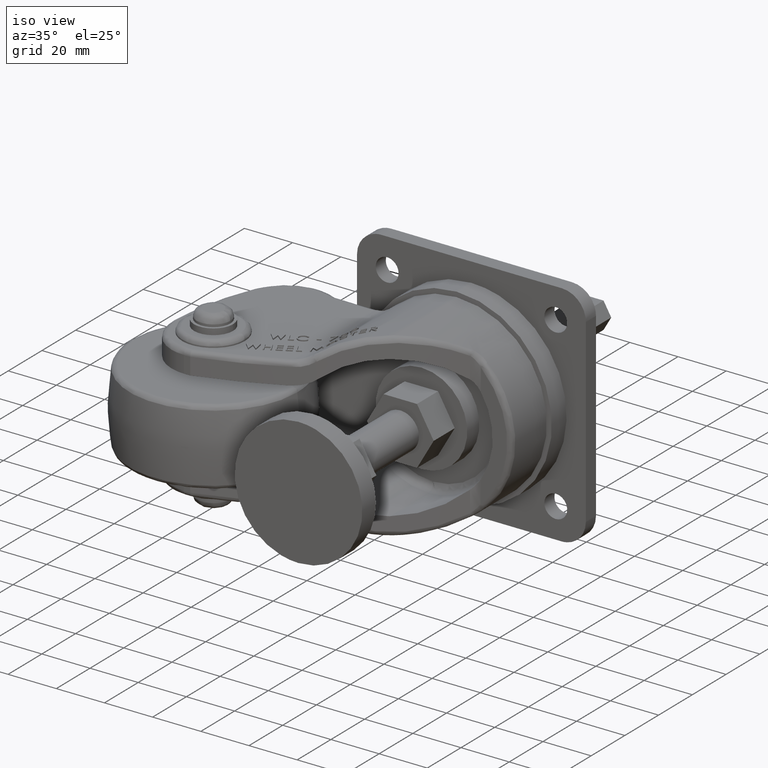
[diagram: clean part render]
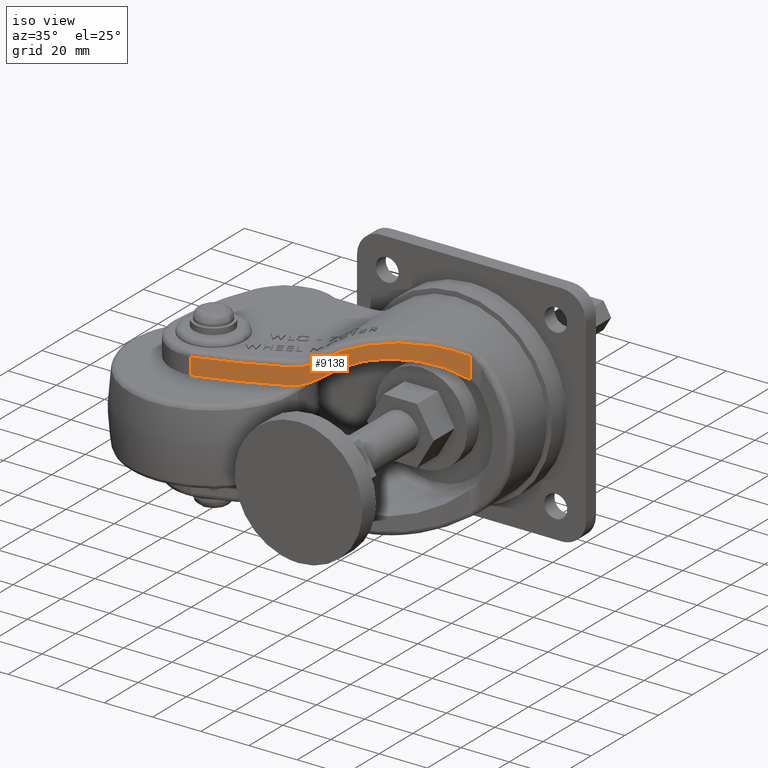
[diagram: same view with one face highlighted and labeled with its STEP entity id]
A machine part, iso view. The second image highlights one B-rep face of the part: STEP entity #9138.
In plain terms, the highlighted face is a freeform B-spline surface patch.
Its self-contained STEP definition (entity closure, byte-faithful):
#68 = CARTESIAN_POINT ( 'NONE',  ( -24.65525064200000216, 24.95008783900000182, 26.04087533799999932 ) ) ;
#125 = VERTEX_POINT ( 'NONE', #1433 ) ;
#183 = CARTESIAN_POINT ( 'NONE',  ( -29.29163702940070024, 22.57965172464994907, 18.50000000000000000 ) ) ;
#239 = CARTESIAN_POINT ( 'NONE',  ( 6.005326444736247105, 44.91803432513322036, 28.88236210724056008 ) ) ;
#382 = CARTESIAN_POINT ( 'NONE',  ( -23.70795384799999894, 25.45199231399999817, 26.35767637500000049 ) ) ;
#616 = EDGE_CURVE ( 'NONE', #22958, #2875, #14221, .T. ) ;
#682 = CARTESIAN_POINT ( 'NONE',  ( -21.82102644957911153, 26.47539168963408684, 20.49219686929322748 ) ) ;
#696 = CARTESIAN_POINT ( 'NONE',  ( -28.25720241518495257, 23.09539682960305029, 25.49999999859155153 ) ) ;
#707 = CARTESIAN_POINT ( 'NONE',  ( 3.147898175283170730, 42.70119839392936711, 29.33166164872362103 ) ) ;
#794 = CARTESIAN_POINT ( 'NONE',  ( -4.328797794036280955, 37.27608995097781985, 29.18190549948791457 ) ) ;
#1104 = CARTESIAN_POINT ( 'NONE',  ( -1.831874267391225128E-08, 40.35278656966605126, 29.50000000293384872 ) ) ;
#1305 = CARTESIAN_POINT ( 'NONE',  ( -24.79318277593846176, 24.87716303363304959, 19.18730859359163432 ) ) ;
#1417 = CARTESIAN_POINT ( 'NONE',  ( -9.660581609450730411, 33.71750080163042895, 27.87368702396885922 ) ) ;
#1433 = CARTESIAN_POINT ( 'NONE',  ( -19.41805150281274805, 27.81522370650059628, 22.20786517015875106 ) ) ;
#1457 = CARTESIAN_POINT ( 'NONE',  ( -9.297678018999999239, 33.95180065099999922, 33.94795673000000136 ) ) ;
#1575 = CARTESIAN_POINT ( 'NONE',  ( -12.92898527580160817, 31.65475252276948126, 26.51969384087986015 ) ) ;
#1618 = CARTESIAN_POINT ( 'NONE',  ( -13.88591949999999997, 31.06479848700000090, 32.22396060799999873 ) ) ;
#1665 = VERTEX_POINT ( 'NONE', #31499 ) ;
#1780 = CARTESIAN_POINT ( 'NONE',  ( -6.504552054000000361, 35.79047115299999859, 34.68561126700000585 ) ) ;
#1841 = CARTESIAN_POINT ( 'NONE',  ( -20.81739126164644915, 27.02974513697879644, 28.02631579095815084 ) ) ;
#1844 = CARTESIAN_POINT ( 'NONE',  ( 16.49288190722238667, 53.80984148448008852, 24.45884119618754582 ) ) ;
#2007 = CARTESIAN_POINT ( 'NONE',  ( 12.59375097225423268, 50.35775283984629169, 26.67782140446650629 ) ) ;
#2052 = CARTESIAN_POINT ( 'NONE',  ( -9.992750380294008750, 33.50393165147110608, 27.75599293777649024 ) ) ;
#2095 = CARTESIAN_POINT ( 'NONE',  ( 17.23454929500000077, 54.48327271400000171, 31.76120717699999929 ) ) ;
#2177 = ORIENTED_EDGE ( 'NONE', *, *, #9538, .F. ) ;
#2319 = CARTESIAN_POINT ( 'NONE',  ( 10.72168847714268658, 48.76376229902970039, 27.48290623144142586 ) ) ;
#2459 = CARTESIAN_POINT ( 'NONE',  ( -25.94563935500000085, 24.27470134099999655, 25.71566576200000043 ) ) ;
#2472 = CARTESIAN_POINT ( 'NONE',  ( 14.04003070979628909, 51.61740633020574620, 25.94471071671260276 ) ) ;
#2633 = CARTESIAN_POINT ( 'NONE',  ( 10.04811362204656611, 48.19986837793505430, 27.73599696671326242 ) ) ;
#2789 = CARTESIAN_POINT ( 'NONE',  ( -49.98558823086649738, 13.37178198489389302, 25.50000000111739595 ) ) ;
#2875 = VERTEX_POINT ( 'NONE', #1841 ) ;
#3102 = CARTESIAN_POINT ( 'NONE',  ( 6.186694439817431501, 45.06149836843870560, 28.84431884347645081 ) ) ;
#3255 = CARTESIAN_POINT ( 'NONE',  ( 8.636160785993384437, 47.03377977456575110, 28.20756539750720293 ) ) ;
#3647 = CARTESIAN_POINT ( 'NONE',  ( -9.010992513977289065, 34.13790754392066162, 28.09086996842518857 ) ) ;
#3762 = B_SPLINE_CURVE_WITH_KNOTS ( 'NONE', 3,
 ( #1104, #27421, #12900, #10351, #30129, #17825, #794, #20060, #25495, #10511, #27583, #8284, #13218, #17983, #10829, #27741, #15591, #3647, #21319, #1417, #19079, #3962, #20839, #18764, #2052, #23884, #25645, #1575, #30603, #11771, #3807, #28530, #14155, #21481, #23724, #16050, #23569, #31240, #9383 ),
 .UNSPECIFIED., .F., .F.,
 ( 4, 2, 2, 1, 1, 1, 1, 2, 2, 2, 2, 1, 1, 1, 1, 2, 2, 2, 2, 1, 1, 1, 2, 2, 4 ),
 ( -1.000000000000000000, -0.8749999999999885647, -0.8124999999999827915, -0.7812499999999797939, -0.7656249999999784617, -0.7578124999999777955, -0.7539062499999772404, -0.7519531249999769074, -0.7499999999999766853, -0.6249999999999695799, -0.5624999999999661382, -0.5312499999999644729, -0.5156249999999633626, -0.5078124999999631406, -0.5039062499999629186, -0.5019531249999629186, -0.4999999999999631406, -0.3749999999999668043, -0.3124999999999688027, -0.2812499999999695799, -0.2656249999999699130, -0.2578124999999702460, -0.2539062499999704681, -0.2499999999999706901, 0.000000000000000000 ),
 .UNSPECIFIED. ) ;
#3807 = CARTESIAN_POINT ( 'NONE',  ( -14.21861831760395489, 30.86543888044226236, 25.84893762632682979 ) ) ;
#3846 = CARTESIAN_POINT ( 'NONE',  ( -17.42208175599999720, 28.95853807799999657, 30.35926800400000047 ) ) ;
#3937 = ORIENTED_EDGE ( 'NONE', *, *, #6998, .T. ) ;
#3962 = CARTESIAN_POINT ( 'NONE',  ( -9.920021733781062778, 33.55062452058552935, 27.78208716354417618 ) ) ;
#4004 = CARTESIAN_POINT ( 'NONE',  ( -7.900102936999998882, 34.86447989299999506, 34.34316464299999438 ) ) ;
#4124 = VERTEX_POINT ( 'NONE', #22629 ) ;
#4227 = CARTESIAN_POINT ( 'NONE',  ( 16.57370507339000554, 53.88332028526473749, 24.40418297020112703 ) ) ;
#4322 = CARTESIAN_POINT ( 'NONE',  ( 4.532390217999999749, 43.76088580100000058, 35.35703854600000540 ) ) ;
#4386 = CARTESIAN_POINT ( 'NONE',  ( 18.86278132547390030, 55.99861052402359718, 22.68139211924491860 ) ) ;
#4482 = CARTESIAN_POINT ( 'NONE',  ( 16.03536053200000211, 53.39438099999999565, 32.31875172000000163 ) ) ;
#4553 = CARTESIAN_POINT ( 'NONE',  ( 11.36943016690035790, 49.31101911016275352, 27.22105917634605987 ) ) ;
#4700 = CARTESIAN_POINT ( 'NONE',  ( -28.25720241518495257, 23.09539682960305029, 25.49999999859155153 ) ) ;
#4709 = CARTESIAN_POINT ( 'NONE',  ( 11.23697421795095330, 49.19865796626365295, 27.27635878179787809 ) ) ;
#4797 = CARTESIAN_POINT ( 'NONE',  ( 20.31806101599999792, 57.37466864399999622, 30.04172522300000381 ) ) ;
#4868 = CARTESIAN_POINT ( 'NONE',  ( 12.00270129771463701, 49.85036998892281446, 26.94814717928630898 ) ) ;
#5181 = CARTESIAN_POINT ( 'NONE',  ( 9.114728368103534706, 47.42653239891802741, 28.05684102624109144 ) ) ;
#5214 = EDGE_CURVE ( 'NONE', #11067, #24131, #22546, .T. ) ;
#5340 = CARTESIAN_POINT ( 'NONE',  ( 8.669309623246197916, 47.06090736611220393, 28.19739867931088995 ) ) ;
#5472 = VERTEX_POINT ( 'NONE', #27231 ) ;
#5492 = CARTESIAN_POINT ( 'NONE',  ( 5.852797744966482085, 44.79761386736959849, 28.91357466358102002 ) ) ;
#5624 = CARTESIAN_POINT ( 'NONE',  ( -25.53882641191660596, 24.48547402537996120, 18.96496729356536903 ) ) ;
#5777 = CARTESIAN_POINT ( 'NONE',  ( -23.01326120483669158, 25.82560219772000920, 19.86401847949832700 ) ) ;
#6095 = CARTESIAN_POINT ( 'NONE',  ( -22.01688754681403637, 26.36808936462375641, 20.38162230928390528 ) ) ;
#6250 = CARTESIAN_POINT ( 'NONE',  ( 18.01957705199999893, 55.20790860900000041, 31.36058891400000093 ) ) ;
#6372 = B_SPLINE_CURVE_WITH_KNOTS ( 'NONE', 3,
 ( #12036, #26228, #6783, #14272, #16314, #14430, #7271, #19347, #31506, #4386, #28480, #6945, #19186, #12192, #28956, #26069, #16473, #29117, #21592, #4227, #31032, #28795, #1844, #21268, #24161, #9333, #16959, #30869, #18871, #24316, #14108, #26713, #2472, #13951, #16629, #9015, #31192, #23838, #26390, #2007, #7109, #4868, #18717, #11726, #21433, #19028, #9490, #16800, #14583, #4553, #24001, #4709, #26549, #2319, #22229, #19510, #7424, #10126, #15199, #2633, #27187, #10268, #12818, #12350, #5181, #17118, #7896, #15352, #25099, #5340, #27502, #14735, #19828, #3255, #24951, #7585, #22068, #12664, #15050, #3102, #239, #29270, #29891, #5492, #14895, #29579, #22542, #17431, #9972, #21908, #17271, #19976, #707, #17585, #19668, #24792, #7741, #27338, #27026, #10425, #29429 ),
 .UNSPECIFIED., .F., .F.,
 ( 4, 2, 1, 1, 1, 1, 1, 2, 2, 2, 2, 1, 1, 1, 1, 2, 2, 2, 2, 1, 1, 1, 1, 1, 2, 2, 2, 2, 1, 1, 1, 1, 1, 1, 2, 2, 2, 2, 1, 1, 1, 2, 2, 2, 2, 1, 1, 1, 1, 2, 2, 2, 2, 1, 1, 1, 1, 2, 2, 2, 2, 1, 1, 1, 1, 2, 2, 4 ),
 ( -1.000000000000000000, -0.9375000000000005551, -0.9062500000000006661, -0.8906250000000005551, -0.8828125000000002220, -0.8789062500000001110, -0.8769531249999998890, -0.8759765624999995559, -0.8749999999999992228, -0.8124999999999930056, -0.7812499999999902300, -0.7656249999999891198, -0.7578124999999887867, -0.7539062499999885647, -0.7519531249999883427, -0.7509765624999880096, -0.7499999999999877875, -0.6874999999999680256, -0.6562499999999580336, -0.6406249999999529265, -0.6328124999999501510, -0.6289062499999487077, -0.6269531249999480416, -0.6259765624999479305, -0.6254882812499478195, -0.6249999999999478195, -0.5624999999998812061, -0.5312499999998478994, -0.5156249999998312461, -0.5078124999998231415, -0.5039062499998188116, -0.5019531249998170352, -0.5009765624998161471, -0.5004882812498157030, -0.5002441406248157030, -0.4999999999998155920, -0.4687499999998389066, -0.4531249999998502309, -0.4453124999998560041, -0.4414062499998587796, -0.4394531249998602229, -0.4384765624998612221, -0.4374999999998621103, -0.4062499999998973044, -0.3906249999999149569, -0.3828124999999238387, -0.3789062499999280575, -0.3769531249999297229, -0.3759765624999302780, -0.3754882812499301670, -0.3749999999999300559, -0.3124999999999348299, -0.2812499999999369393, -0.2656249999999379385, -0.2578124999999384936, -0.2539062499999383826, -0.2519531249999381606, -0.2509765624999380496, -0.2499999999999380496, -0.1874999999999537037, -0.1562499999999615863, -0.1406249999999653610, -0.1328124999999669154, -0.1289062499999679146, -0.1269531249999688027, -0.1259765624999691358, -0.1249999999999694689, 0.000000000000000000 ),
 .UNSPECIFIED. ) ;
#6560 = CARTESIAN_POINT ( 'NONE',  ( 1.804710767999999854, 41.68635409799999536, 35.49771358699999979 ) ) ;
#6717 = CARTESIAN_POINT ( 'NONE',  ( -9.996277859000000987, 33.50144369299999880, 33.72863773500000661 ) ) ;
#6783 = CARTESIAN_POINT ( 'NONE',  ( 20.37159607446913867, 57.42870154500422331, 21.34248958564863230 ) ) ;
#6880 = CARTESIAN_POINT ( 'NONE',  ( -2.797146813999999981, 38.34124148099999729, 35.29155204799999979 ) ) ;
#6945 = CARTESIAN_POINT ( 'NONE',  ( 18.84298061046847650, 55.98002769283339575, 22.69784424937930822 ) ) ;
#6998 = EDGE_CURVE ( 'NONE', #11067, #125, #20152, .T. ) ;
#7082 = ORIENTED_EDGE ( 'NONE', *, *, #11658, .F. ) ;
#7109 = CARTESIAN_POINT ( 'NONE',  ( 12.36424295917356808, 50.16012037522316547, 26.78517118483800630 ) ) ;
#7271 = CARTESIAN_POINT ( 'NONE',  ( 19.01400222479344393, 56.14066703448978757, 22.55493836956359033 ) ) ;
#7424 = CARTESIAN_POINT ( 'NONE',  ( 10.28176090441821877, 48.39487312140128239, 27.65043856210708384 ) ) ;
#7573 = CARTESIAN_POINT ( 'NONE',  ( -24.49616874800000232, 25.03414888899999724, 26.09108597200000190 ) ) ;
#7585 = CARTESIAN_POINT ( 'NONE',  ( 7.601346735300016810, 46.19178861947275294, 28.50793170389851028 ) ) ;
#7741 = CARTESIAN_POINT ( 'NONE',  ( 2.965103641163039594, 42.56220333792965249, 29.35060834055168399 ) ) ;
#7896 = CARTESIAN_POINT ( 'NONE',  ( 8.858079368969224987, 47.21561497744507108, 28.13871282089294112 ) ) ;
#8284 = CARTESIAN_POINT ( 'NONE',  ( -5.001681248799894064, 36.81350866519529319, 29.07289703980629625 ) ) ;
#8286 = CARTESIAN_POINT ( 'NONE',  ( -55.88824249945583489, 11.63013319433333415, 18.50000000000000355 ) ) ;
#8414 = CARTESIAN_POINT ( 'NONE',  ( 21.06072384431655209, 58.09326814931600325, 29.55235347159264592 ) ) ;
#8487 = CARTESIAN_POINT ( 'NONE',  ( -22.31232840121258221, 26.20655226009631633, 20.21917359542420911 ) ) ;
#8644 = CARTESIAN_POINT ( 'NONE',  ( -19.41805150281274805, 27.81522370650059628, 22.20786517015875106 ) ) ;
#8916 = EDGE_CURVE ( 'NONE', #4124, #18769, #6372, .T. ) ;
#9015 = CARTESIAN_POINT ( 'NONE',  ( 13.99642919470550950, 51.57908803198851189, 25.96824959207322081 ) ) ;
#9138 = ADVANCED_FACE ( 'NONE', ( #19578 ), #14760, .F. ) ;
#9266 = CARTESIAN_POINT ( 'NONE',  ( 14.40720262500000004, 51.94075244100000077, 33.00201421599999918 ) ) ;
#9333 = CARTESIAN_POINT ( 'NONE',  ( 15.72422461030047813, 53.11385203790587184, 24.96465620843931887 ) ) ;
#9383 = CARTESIAN_POINT ( 'NONE',  ( -19.41805150281274805, 27.81522370650059628, 22.20786517015875106 ) ) ;
#9490 = CARTESIAN_POINT ( 'NONE',  ( 11.39417234628355580, 49.33201145188529324, 27.21071436302226942 ) ) ;
#9538 = EDGE_CURVE ( 'NONE', #5472, #4124, #16541, .T. ) ;
#9644 = CARTESIAN_POINT ( 'NONE',  ( -23.09925898199999850, 25.77898936800000129, 26.62062910500000257 ) ) ;
#9972 = CARTESIAN_POINT ( 'NONE',  ( 4.102912211095927297, 43.43270527319192809, 29.21429315380184377 ) ) ;
#10109 = CARTESIAN_POINT ( 'NONE',  ( -24.97594894099999863, 24.78118808400000006, 25.94686006899999953 ) ) ;
#10126 = CARTESIAN_POINT ( 'NONE',  ( 10.14745856113552414, 48.28271964987411025, 27.69985818714985371 ) ) ;
#10268 = CARTESIAN_POINT ( 'NONE',  ( 10.01663894245275266, 48.17363696822155106, 27.74737891015878688 ) ) ;
#10351 = CARTESIAN_POINT ( 'NONE',  ( -3.000028689052291586, 38.20172566576978568, 29.35007670271309976 ) ) ;
#10425 = CARTESIAN_POINT ( 'NONE',  ( 0.9408226926666517498, 41.04039670688698038, 29.50000000000000000 ) ) ;
#10511 = CARTESIAN_POINT ( 'NONE',  ( -4.939797601283868467, 36.85590468470669379, 29.08349195516040808 ) ) ;
#10674 = CARTESIAN_POINT ( 'NONE',  ( -34.45404570252879495, 20.02439374316666942, 18.50000000000000000 ) ) ;
#10719 = CARTESIAN_POINT ( 'NONE',  ( -24.26616967508909894, 25.15605338284932913, 19.36644487758410449 ) ) ;
#10829 = CARTESIAN_POINT ( 'NONE',  ( -6.747539501604654433, 35.62840669552269901, 28.73081353040964814 ) ) ;
#10874 = CARTESIAN_POINT ( 'NONE',  ( -29.29163702940070024, 22.57965172464994907, 18.50000000000000000 ) ) ;
#11067 = VERTEX_POINT ( 'NONE', #183 ) ;
#11179 = EDGE_LOOP ( 'NONE', ( #25428, #28651, #7082, #15404, #17414, #3937, #15876, #23066, #2177 ) ) ;
#11181 = CARTESIAN_POINT ( 'NONE',  ( 3.175259866000000208, 42.72104010200000346, 35.44850700099999585 ) ) ;
#11297 = CARTESIAN_POINT ( 'NONE',  ( -50.44411264046427590, 13.49546060983333007, 18.49999999999999289 ) ) ;
#11336 = CARTESIAN_POINT ( 'NONE',  ( -5.575776063000000171, 36.41796473800000200, 34.87438786999999252 ) ) ;
#11658 = EDGE_CURVE ( 'NONE', #1665, #22958, #20052, .T. ) ;
#11661 = CARTESIAN_POINT ( 'NONE',  ( 12.33678096900000121, 50.13291979099999907, 33.75318501099999935 ) ) ;
#11726 = CARTESIAN_POINT ( 'NONE',  ( 11.59402217306620742, 49.50178249959348165, 27.12632127364173584 ) ) ;
#11771 = CARTESIAN_POINT ( 'NONE',  ( -13.92425054759359782, 31.04462923608245006, 26.00798311294189702 ) ) ;
#12036 = CARTESIAN_POINT ( 'NONE',  ( 21.06072378222939889, 58.09326808770810402, 20.65661910857134842 ) ) ;
#12192 = CARTESIAN_POINT ( 'NONE',  ( 18.10953148086146669, 55.29420428226586637, 23.29240458382044920 ) ) ;
#12350 = CARTESIAN_POINT ( 'NONE',  ( 9.459040705065863364, 47.71046395001397400, 27.94342418752957258 ) ) ;
#12417 = CARTESIAN_POINT ( 'NONE',  ( -30.29031434679844992, 19.18310828544459667, 18.50000000000000000 ) ) ;
#12494 = CARTESIAN_POINT ( 'NONE',  ( -26.92589148700000123, 23.76868129800000062, 25.55458331000000172 ) ) ;
#12664 = CARTESIAN_POINT ( 'NONE',  ( 6.673373040092223540, 45.44822554602119169, 28.73614205078697736 ) ) ;
#12733 = CARTESIAN_POINT ( 'NONE',  ( -61.41295710420827447, 10.00000002744858030, 35.61210496575490225 ) ) ;
#12818 = CARTESIAN_POINT ( 'NONE',  ( 9.718742778832190510, 47.92544385518490202, 27.85480813578974590 ) ) ;
#12900 = CARTESIAN_POINT ( 'NONE',  ( -1.742106642121690863, 39.09077819993684955, 29.46054586745792747 ) ) ;
#13218 = CARTESIAN_POINT ( 'NONE',  ( -5.012821761466185855, 36.80587919103301431, 29.07097879551267994 ) ) ;
#13264 = CARTESIAN_POINT ( 'NONE',  ( -26.18983346238251286, 24.14798271252399076, 18.81742188985691655 ) ) ;
#13564 = CARTESIAN_POINT ( 'NONE',  ( -19.14032721999999964, 27.97005243699999966, 29.25913863400000281 ) ) ;
#13687 = CARTESIAN_POINT ( 'NONE',  ( -61.41295716586250109, 10.00000000914952025, 18.50000000000000000 ) ) ;
#13884 = CARTESIAN_POINT ( 'NONE',  ( -20.81739126164644915, 27.02974513697879644, 28.02631579095815084 ) ) ;
#13951 = CARTESIAN_POINT ( 'NONE',  ( 14.01461236150864309, 51.59506567348856265, 25.95844293814723613 ) ) ;
#14108 = CARTESIAN_POINT ( 'NONE',  ( 14.19160113784234234, 51.75075748340448456, 25.86224990805145652 ) ) ;
#14155 = CARTESIAN_POINT ( 'NONE',  ( -14.72641699265791715, 30.55840037223621053, 25.56145596539863618 ) ) ;
#14221 = B_SPLINE_CURVE_WITH_KNOTS ( 'NONE', 3,
 ( #4700, #24620, #12494, #2459, #22218, #14417, #10109, #68, #7573, #382, #9644, #26698, #19814, #24146 ),
 .UNSPECIFIED., .F., .F.,
 ( 4, 2, 2, 2, 2, 2, 4 ),
 ( 0.000000000000000000, 0.2500000000000004996, 0.3750000000000002220, 0.4375000000000000555, 0.5000000000000000000, 0.7500000000000005551, 1.000000000000000000 ),
 .UNSPECIFIED. ) ;
#14272 = CARTESIAN_POINT ( 'NONE',  ( 19.81614534600603861, 56.89909148023444629, 21.85483540797493163 ) ) ;
#14417 = CARTESIAN_POINT ( 'NONE',  ( -25.13680720600000029, 24.69674848099999664, 25.90327480200000210 ) ) ;
#14430 = CARTESIAN_POINT ( 'NONE',  ( 19.18859333122815869, 56.30499027545424440, 22.40708982673599792 ) ) ;
#14583 = CARTESIAN_POINT ( 'NONE',  ( 11.37355757994733452, 49.31452063022665300, 27.21933491064357824 ) ) ;
#14672 = CARTESIAN_POINT ( 'NONE',  ( 19.56133197400000512, 56.65360469099999818, 30.50084512300000128 ) ) ;
#14735 = CARTESIAN_POINT ( 'NONE',  ( 8.642589539402218080, 47.03904007870733039, 28.20559614202984733 ) ) ;
#14760 =( BOUNDED_SURFACE ( )  B_SPLINE_SURFACE ( 1, 3, ( 
 ( #14809, #12417, #15113, #20049 ),
 ( #12733, #15268, #22456, #19897 ) ),
 .UNSPECIFIED., .F., .F., .F. ) 
 B_SPLINE_SURFACE_WITH_KNOTS ( ( 2, 2 ),
 ( 4, 4 ),
 ( 0.000000000000000000, 0.9950426374370000548 ),
 ( 0.000000000000000000, 1.000000000000000000 ),
 .UNSPECIFIED. ) 
 GEOMETRIC_REPRESENTATION_ITEM ( )  RATIONAL_B_SPLINE_SURFACE ( (
 ( 1.000000000000000000, 0.9807322519508824277, 0.9807322519508824277, 1.000000000000000000),
 ( 1.000000000000000000, 0.9807322519508824277, 0.9807322519508824277, 1.000000000000000000) ) ) 
 REPRESENTATION_ITEM ( '' )  SURFACE ( )  );
#14809 = CARTESIAN_POINT ( 'NONE',  ( -61.41295710420827447, 10.00000002744858030, 18.50000000000000000 ) ) ;
#14895 = CARTESIAN_POINT ( 'NONE',  ( 5.840204260639789702, 44.78768056393278130, 28.91612103073237350 ) ) ;
#15050 = CARTESIAN_POINT ( 'NONE',  ( 6.346853885445490562, 45.18857977248886471, 28.80937152526266587 ) ) ;
#15113 = CARTESIAN_POINT ( 'NONE',  ( -2.258986841167445636, 35.52914902182733670, 18.50000000000000000 ) ) ;
#15199 = CARTESIAN_POINT ( 'NONE',  ( 10.07822942744193284, 48.22497408402901442, 27.72508041933468093 ) ) ;
#15268 = CARTESIAN_POINT ( 'NONE',  ( -30.29031434679844992, 19.18310828544459667, 35.61210496575491646 ) ) ;
#15352 = CARTESIAN_POINT ( 'NONE',  ( 8.786233044017157212, 47.15667531050250005, 28.16125197107028910 ) ) ;
#15404 = ORIENTED_EDGE ( 'NONE', *, *, #27687, .F. ) ;
#15480 = CARTESIAN_POINT ( 'NONE',  ( -21.72506159068992204, 26.52806950825237209, 20.54778014476876891 ) ) ;
#15510 = CARTESIAN_POINT ( 'NONE',  ( -61.41295716586250109, 10.00000000914952025, 18.50000000000000000 ) ) ;
#15591 = CARTESIAN_POINT ( 'NONE',  ( -8.403888063821247201, 34.53362940030213224, 28.28081526566145598 ) ) ;
#15876 = ORIENTED_EDGE ( 'NONE', *, *, #30999, .F. ) ;
#15939 = CARTESIAN_POINT ( 'NONE',  ( 13.17096902599999986, 50.85382464700000327, 33.47199970599999830 ) ) ;
#16050 = CARTESIAN_POINT ( 'NONE',  ( -14.86899009846253783, 30.47251079644720662, 25.47869680624983957 ) ) ;
#16090 = CARTESIAN_POINT ( 'NONE',  ( -9.064573627999999772, 34.10298963500000724, 34.01768400099999923 ) ) ;
#16247 = CARTESIAN_POINT ( 'NONE',  ( -8.365683189000000297, 34.55835833600000484, 34.21912351799999641 ) ) ;
#16314 = CARTESIAN_POINT ( 'NONE',  ( 19.53188917492048660, 56.62908892411861217, 22.11044936651021331 ) ) ;
#16405 = CARTESIAN_POINT ( 'NONE',  ( 5.426509315000000555, 44.45823988600000121, 35.26269667399999719 ) ) ;
#16473 = CARTESIAN_POINT ( 'NONE',  ( 17.00991027516934651, 54.28124858445906398, 24.10246822114747545 ) ) ;
#16541 = B_SPLINE_CURVE_WITH_KNOTS ( 'NONE', 1,
 ( #8414, #18417 ),
 .UNSPECIFIED., .F., .F.,
 ( 2, 2 ),
 ( -1.000000000000000000, 0.000000000000000000 ),
 .UNSPECIFIED. ) ;
#16567 = CARTESIAN_POINT ( 'NONE',  ( 14.81707437100000035, 52.30386970600000041, 32.83825257800000230 ) ) ;
#16629 = CARTESIAN_POINT ( 'NONE',  ( 14.00370438220652858, 51.58548050243973648, 25.96432707878995316 ) ) ;
#16800 = CARTESIAN_POINT ( 'NONE',  ( 11.37974654130830565, 49.31977128658116527, 27.21674858675334008 ) ) ;
#16959 = CARTESIAN_POINT ( 'NONE',  ( 15.10226457059628480, 52.55763378873650993, 25.34226567692594756 ) ) ;
#17118 = CARTESIAN_POINT ( 'NONE',  ( 9.007492042913591845, 47.33831159966282343, 28.09138665839446602 ) ) ;
#17271 = CARTESIAN_POINT ( 'NONE',  ( 3.518958467139104318, 42.98439738088709561, 29.28959870845137914 ) ) ;
#17414 = ORIENTED_EDGE ( 'NONE', *, *, #5214, .F. ) ;
#17431 = CARTESIAN_POINT ( 'NONE',  ( 4.822527797302624819, 43.98925432465102858, 29.10718945547954206 ) ) ;
#17525 = CARTESIAN_POINT ( 'NONE',  ( -61.41295716586250109, 10.00000000914952025, 18.50000000000000000 ) ) ;
#17585 = CARTESIAN_POINT ( 'NONE',  ( 3.049279107101130037, 42.62617375179068091, 29.34200562087712782 ) ) ;
#17720 = CARTESIAN_POINT ( 'NONE',  ( -24.47658102136695746, 25.04456157051759746, 19.29335593553854977 ) ) ;
#17825 = CARTESIAN_POINT ( 'NONE',  ( -4.025248092528435961, 37.48638355349118712, 29.22481211733009943 ) ) ;
#17872 = CARTESIAN_POINT ( 'NONE',  ( -23.63398717408760419, 25.49235579415848463, 19.60055732255623795 ) ) ;
#17983 = CARTESIAN_POINT ( 'NONE',  ( -5.896011901358870766, 36.20120042197793708, 28.91826175170369240 ) ) ;
#18337 = CARTESIAN_POINT ( 'NONE',  ( -12.07276528899999946, 32.18373140300000301, 32.99622430000000151 ) ) ;
#18417 = CARTESIAN_POINT ( 'NONE',  ( 21.06072378222939889, 58.09326808770810402, 20.65661910857134842 ) ) ;
#18496 = CARTESIAN_POINT ( 'NONE',  ( 8.067871323999998623, 46.56651984599999849, 34.85226928499999843 ) ) ;
#18604 = CARTESIAN_POINT ( 'NONE',  ( -29.29163702940070024, 22.57965172464994907, 18.50000000000000000 ) ) ;
#18649 = CARTESIAN_POINT ( 'NONE',  ( -19.98632653599999998, 27.49186433399999885, 28.66597437200000087 ) ) ;
#18717 = CARTESIAN_POINT ( 'NONE',  ( 11.81761075180419773, 49.69216937343120577, 27.03012104541962302 ) ) ;
#18764 = CARTESIAN_POINT ( 'NONE',  ( -9.981587647202207592, 33.51109606315112188, 27.76000862950624892 ) ) ;
#18769 = VERTEX_POINT ( 'NONE', #24249 ) ;
#18804 = CARTESIAN_POINT ( 'NONE',  ( -11.15543128600000067, 32.75983693399999908, 33.34308956599999618 ) ) ;
#18871 = CARTESIAN_POINT ( 'NONE',  ( 14.55862477467905691, 52.07481479891368537, 25.65760165847026641 ) ) ;
#19028 = CARTESIAN_POINT ( 'NONE',  ( 11.42296355758674231, 49.35644631773505608, 27.19864811847006081 ) ) ;
#19079 = CARTESIAN_POINT ( 'NONE',  ( -9.833697043975012875, 33.60609557646166934, 27.81282444324653724 ) ) ;
#19186 = CARTESIAN_POINT ( 'NONE',  ( 18.48276573442285198, 55.64203785040723460, 22.99673392533961547 ) ) ;
#19347 = CARTESIAN_POINT ( 'NONE',  ( 18.92596753621868544, 56.05793693484945805, 22.62873491845722640 ) ) ;
#19510 = CARTESIAN_POINT ( 'NONE',  ( 10.38978139386618338, 48.48528296528786541, 27.60992339392657513 ) ) ;
#19578 = FACE_OUTER_BOUND ( 'NONE', #11179, .T. ) ;
#19668 = CARTESIAN_POINT ( 'NONE',  ( 3.000137131762670606, 42.58882019178684430, 29.34705308639768262 ) ) ;
#19814 = CARTESIAN_POINT ( 'NONE',  ( -21.35961661199999995, 26.72823703999999978, 27.60897270800000314 ) ) ;
#19828 = CARTESIAN_POINT ( 'NONE',  ( 8.637292135397654391, 47.03470551079361428, 28.20721879664267817 ) ) ;
#19897 = CARTESIAN_POINT ( 'NONE',  ( 21.06072374510232947, 58.09326805306906749, 35.61210496575490225 ) ) ;
#19966 = CARTESIAN_POINT ( 'NONE',  ( -61.41295716943619709, 10.00000000792259947, 25.49999999875129930 ) ) ;
#19976 = CARTESIAN_POINT ( 'NONE',  ( 3.346473025138676505, 42.85251776673064228, 29.30996545232670414 ) ) ;
#20049 = CARTESIAN_POINT ( 'NONE',  ( 21.06072374510232947, 58.09326805306906749, 18.50000000000000000 ) ) ;
#20052 =( BOUNDED_CURVE ( )  B_SPLINE_CURVE ( 3, ( #19966, #2789, #22531, #696 ),
 .UNSPECIFIED., .F., .F. ) 
 B_SPLINE_CURVE_WITH_KNOTS ( ( 4, 4 ),
 ( 4.999309336520959768, 5.177787082860380252 ),
 .UNSPECIFIED. ) 
 CURVE ( )  GEOMETRIC_REPRESENTATION_ITEM ( )  RATIONAL_B_SPLINE_CURVE ( ( 0.9565325661914526600, 0.9540102951958748800, 0.9540255405207217487, 0.9565783021659933771 ) ) 
 REPRESENTATION_ITEM ( '' )  );
#20060 = CARTESIAN_POINT ( 'NONE',  ( -4.678948753539882155, 37.03493675057219292, 29.12688212947923816 ) ) ;
#20152 = B_SPLINE_CURVE_WITH_KNOTS ( 'NONE', 3,
 ( #10874, #22832, #30024, #13264, #5624, #1305, #17720, #10719, #30330, #17872, #5777, #8487, #6095, #682, #15480, #25230, #30175, #8644 ),
 .UNSPECIFIED., .F., .F.,
 ( 4, 2, 1, 1, 2, 2, 1, 1, 2, 2, 4 ),
 ( -1.000000000000000000, -0.7500000000000037748, -0.6250000000000051070, -0.5625000000000055511, -0.5312500000000051070, -0.5000000000000045519, -0.3750000000000042188, -0.3125000000000036637, -0.2812500000000032196, -0.2500000000000028866, 0.000000000000000000 ),
 .UNSPECIFIED. ) ;
#20839 = CARTESIAN_POINT ( 'NONE',  ( -9.956967965575335811, 33.52690083021894196, 27.76884873381588292 ) ) ;
#21268 = CARTESIAN_POINT ( 'NONE',  ( 16.48508400431993337, 53.80275572048901722, 24.46409722051524938 ) ) ;
#21319 = CARTESIAN_POINT ( 'NONE',  ( -9.312496314645560602, 33.94216370563366780, 27.99294491258453021 ) ) ;
#21433 = CARTESIAN_POINT ( 'NONE',  ( 11.48030455254026982, 49.40513419040028964, 27.17452503851865941 ) ) ;
#21481 = CARTESIAN_POINT ( 'NONE',  ( -14.79842886538020963, 30.51500520064709221, 25.51974279389571620 ) ) ;
#21592 = CARTESIAN_POINT ( 'NONE',  ( 16.66748554661332804, 53.96866419934084291, 24.34034225008164043 ) ) ;
#21908 = CARTESIAN_POINT ( 'NONE',  ( 3.866929759382402576, 43.25105966868334662, 29.24639292320116368 ) ) ;
#21999 = CARTESIAN_POINT ( 'NONE',  ( 21.06072384431655209, 58.09326814931600325, 29.55235347159264592 ) ) ;
#22068 = CARTESIAN_POINT ( 'NONE',  ( 6.899322060471099860, 45.62863334895206435, 28.68287844101418571 ) ) ;
#22218 = CARTESIAN_POINT ( 'NONE',  ( -25.62089628200000035, 24.44347961100000077, 25.78263057400000235 ) ) ;
#22229 = CARTESIAN_POINT ( 'NONE',  ( 10.59643479717160197, 48.65847371554541212, 27.53156876228774408 ) ) ;
#22456 = CARTESIAN_POINT ( 'NONE',  ( -2.258986841167445636, 35.52914902182733670, 35.61210496575491646 ) ) ;
#22482 = B_SPLINE_CURVE_WITH_KNOTS ( 'NONE', 3,
 ( #13884, #18649, #13564, #3846, #23298, #23612, #1618, #18337, #18804, #6717, #25843, #1457, #16090, #16247, #4004, #1780, #11336, #28406, #6880, #28099, #28572, #23771, #6560, #26004, #11181, #4322, #16405, #30643, #18496, #23932, #26162, #11661, #15939, #31122, #9266, #16567, #28734, #26321, #4482, #2095, #6250, #14672, #4797, #21999 ),
 .UNSPECIFIED., .F., .F.,
 ( 4, 2, 2, 2, 2, 2, 2, 2, 2, 2, 2, 2, 2, 2, 2, 2, 2, 2, 2, 2, 2, 4 ),
 ( 0.000000000000000000, 0.06250000000000004163, 0.1249999999999999029, 0.1875000000000006939, 0.2499999999999990563, 0.2656249999999995559, 0.2812500000000001110, 0.3124999999999993339, 0.3749999999999995004, 0.4374999999999997780, 0.5000000000000000000, 0.5312499999999991118, 0.5625000000000002220, 0.6250000000000003331, 0.6875000000000007772, 0.7499999999999990008, 0.8124999999999993339, 0.8281249999999997780, 0.8437500000000002220, 0.8749999999999995559, 0.9374999999999996669, 1.000000000000000000 ),
 .UNSPECIFIED. ) ;
#22531 = CARTESIAN_POINT ( 'NONE',  ( -38.90428004669296058, 17.74854053128334286, 25.50000000111740306 ) ) ;
#22542 = CARTESIAN_POINT ( 'NONE',  ( 5.317847956012108135, 44.37577000953482553, 29.02138746167377548 ) ) ;
#22546 = B_SPLINE_CURVE_WITH_KNOTS ( 'NONE', 3,
 ( #18604, #10674, #28059, #11297, #8286, #13687 ),
 .UNSPECIFIED., .F., .F.,
 ( 4, 2, 4 ),
 ( 4.999309336520959768, 5.085658516721579758, 5.172007696922199749 ),
 .UNSPECIFIED. ) ;
#22629 = CARTESIAN_POINT ( 'NONE',  ( 21.06072378222939889, 58.09326808770810402, 20.65661910857134842 ) ) ;
#22832 = CARTESIAN_POINT ( 'NONE',  ( -28.39704643912182291, 23.02245078597069750, 18.50000000000000355 ) ) ;
#22958 = VERTEX_POINT ( 'NONE', #30285 ) ;
#23066 = ORIENTED_EDGE ( 'NONE', *, *, #8916, .F. ) ;
#23298 = CARTESIAN_POINT ( 'NONE',  ( -16.54982134899999835, 29.46884141000000312, 30.86621626600000212 ) ) ;
#23569 = CARTESIAN_POINT ( 'NONE',  ( -16.51196812243178513, 29.48386076792131405, 24.51769157115409570 ) ) ;
#23612 = CARTESIAN_POINT ( 'NONE',  ( -14.78174300600000102, 30.52197095900000079, 31.79856858499999817 ) ) ;
#23724 = CARTESIAN_POINT ( 'NONE',  ( -14.84638593903306081, 30.48611960743912519, 25.49187309123422551 ) ) ;
#23771 = CARTESIAN_POINT ( 'NONE',  ( 1.346125226000000064, 41.34426199699999671, 35.50258171400000151 ) ) ;
#23838 = CARTESIAN_POINT ( 'NONE',  ( 13.64017668186598087, 51.26610502676762593, 26.16013555599410623 ) ) ;
#23884 = CARTESIAN_POINT ( 'NONE',  ( -10.86636546422874616, 32.94338363598236441, 27.44099481857708511 ) ) ;
#23932 = CARTESIAN_POINT ( 'NONE',  ( 9.795192802000000754, 47.98532684599999953, 34.47427439999999876 ) ) ;
#24001 = CARTESIAN_POINT ( 'NONE',  ( 11.36630314534489905, 49.30836641948321386, 27.22236495950377133 ) ) ;
#24131 = VERTEX_POINT ( 'NONE', #15510 ) ;
#24146 = CARTESIAN_POINT ( 'NONE',  ( -20.81739126164644915, 27.02974513697879644, 28.02631579095815084 ) ) ;
#24161 = CARTESIAN_POINT ( 'NONE',  ( 16.11373617388145973, 53.46536042183711857, 24.71420317147191525 ) ) ;
#24249 = CARTESIAN_POINT ( 'NONE',  ( -1.831874267391225128E-08, 40.35278656966605126, 29.50000000293384872 ) ) ;
#24316 = CARTESIAN_POINT ( 'NONE',  ( 14.39119592507894474, 51.92671158872367698, 25.75214447452268374 ) ) ;
#24513 = EDGE_CURVE ( 'NONE', #2875, #5472, #22482, .T. ) ;
#24620 = CARTESIAN_POINT ( 'NONE',  ( -27.58740702700000114, 23.43176139999999918, 25.50000000099999653 ) ) ;
#24792 = CARTESIAN_POINT ( 'NONE',  ( 2.979112240137571810, 42.57284554344208516, 29.34918976435232096 ) ) ;
#24951 = CARTESIAN_POINT ( 'NONE',  ( 8.101650097324403887, 46.59646794879057552, 28.37112783394722371 ) ) ;
#25099 = CARTESIAN_POINT ( 'NONE',  ( 8.707443577374174737, 47.09212749302715650, 28.18565859374137617 ) ) ;
#25230 = CARTESIAN_POINT ( 'NONE',  ( -20.84082705409220537, 27.01441400522632463, 21.07341984096145282 ) ) ;
#25428 = ORIENTED_EDGE ( 'NONE', *, *, #24513, .F. ) ;
#25495 = CARTESIAN_POINT ( 'NONE',  ( -4.853016716112846574, 36.91540748433435226, 29.09815560812723945 ) ) ;
#25645 = CARTESIAN_POINT ( 'NONE',  ( -11.70565399359309744, 32.41425428272945197, 27.09315321784937680 ) ) ;
#25843 = CARTESIAN_POINT ( 'NONE',  ( -9.763821719000000954, 33.65083959300000060, 33.80334258799999958 ) ) ;
#26004 = CARTESIAN_POINT ( 'NONE',  ( 2.720222866999999933, 42.37545508000000183, 35.47064579999999978 ) ) ;
#26069 = CARTESIAN_POINT ( 'NONE',  ( 17.31921955679218428, 54.56468911473229610, 23.88218418877485050 ) ) ;
#26162 = CARTESIAN_POINT ( 'NONE',  ( 10.64889279800000033, 48.69867121900000484, 34.25432332300000127 ) ) ;
#26228 = CARTESIAN_POINT ( 'NONE',  ( 20.72447564220037108, 57.76791485823481054, 20.99944527765062219 ) ) ;
#26321 = CARTESIAN_POINT ( 'NONE',  ( 15.63202011799999802, 53.03109154900000277, 32.49735951800000322 ) ) ;
#26390 = CARTESIAN_POINT ( 'NONE',  ( 13.24856840094891908, 50.92404685498421912, 26.36209986105890124 ) ) ;
#26549 = CARTESIAN_POINT ( 'NONE',  ( 11.06044425485904981, 49.04911229941998840, 27.34914126245173449 ) ) ;
#26698 = CARTESIAN_POINT ( 'NONE',  ( -21.92511500599999863, 26.41709439699999606, 27.24630648000000122 ) ) ;
#26713 = CARTESIAN_POINT ( 'NONE',  ( 14.09073307475060233, 51.66198867405385187, 25.91723631440406805 ) ) ;
#27026 = CARTESIAN_POINT ( 'NONE',  ( 1.926394917999735723, 41.77332533530825032, 29.45504459349546877 ) ) ;
#27187 = CARTESIAN_POINT ( 'NONE',  ( 10.02793716745889441, 48.18305177243998116, 27.74329813242437837 ) ) ;
#27231 = CARTESIAN_POINT ( 'NONE',  ( 21.06072384431655209, 58.09326814931600325, 29.55235347159264592 ) ) ;
#27274 = CARTESIAN_POINT ( 'NONE',  ( -61.41295716943619709, 10.00000000792259947, 25.49999999875129930 ) ) ;
#27322 = B_SPLINE_CURVE_WITH_KNOTS ( 'NONE', 1,
 ( #17525, #27274 ),
 .UNSPECIFIED., .F., .F.,
 ( 2, 2 ),
 ( 0.000000000000000000, 1.000000000000000000 ),
 .UNSPECIFIED. ) ;
#27338 = CARTESIAN_POINT ( 'NONE',  ( 2.959112601509759966, 42.55765252825259637, 29.35121321765911162 ) ) ;
#27421 = CARTESIAN_POINT ( 'NONE',  ( -0.8808407511311274751, 39.70901488890885389, 29.49999999984181187 ) ) ;
#27502 = CARTESIAN_POINT ( 'NONE',  ( 8.650558204217364988, 47.04556074811045363, 28.20315402580674302 ) ) ;
#27583 = CARTESIAN_POINT ( 'NONE',  ( -4.976935046572509513, 36.83045959204296338, 29.07714351761488558 ) ) ;
#27687 = EDGE_CURVE ( 'NONE', #24131, #1665, #27322, .T. ) ;
#27741 = CARTESIAN_POINT ( 'NONE',  ( -7.993687132278392227, 34.80308954429976609, 28.39957217798303191 ) ) ;
#28059 = CARTESIAN_POINT ( 'NONE',  ( -39.71702260034469845, 17.69650388316667033, 18.50000000000000355 ) ) ;
#28099 = CARTESIAN_POINT ( 'NONE',  ( -0.9516672160000000380, 39.65757378099999642, 35.44836499900000604 ) ) ;
#28406 = CARTESIAN_POINT ( 'NONE',  ( -3.722074005000000074, 37.69334980800000068, 35.17736277099999853 ) ) ;
#28480 = CARTESIAN_POINT ( 'NONE',  ( 18.85011671042786219, 55.98672426227043530, 22.69191855711720152 ) ) ;
#28530 = CARTESIAN_POINT ( 'NONE',  ( -14.55785686518025734, 30.66012324505115672, 25.65814483329470619 ) ) ;
#28572 = CARTESIAN_POINT ( 'NONE',  ( -0.03111412900000000079, 40.32601436699999908, 35.49098398099999940 ) ) ;
#28651 = ORIENTED_EDGE ( 'NONE', *, *, #616, .F. ) ;
#28734 = CARTESIAN_POINT ( 'NONE',  ( 15.02151363399999973, 52.48574057599999776, 32.75438616599999619 ) ) ;
#28795 = CARTESIAN_POINT ( 'NONE',  ( 16.50637800054062510, 53.82210692713419320, 24.44973520447969406 ) ) ;
#28956 = CARTESIAN_POINT ( 'NONE',  ( 17.52045018482743188, 54.74988857588660096, 23.73487172409308243 ) ) ;
#29117 = CARTESIAN_POINT ( 'NONE',  ( 16.85338997998929145, 54.13811798468695713, 24.21243874213609715 ) ) ;
#29270 = CARTESIAN_POINT ( 'NONE',  ( 5.916020390916461480, 44.84750170216869947, 28.90072448178133513 ) ) ;
#29429 = CARTESIAN_POINT ( 'NONE',  ( -1.831874267391225128E-08, 40.35278656966605126, 29.50000000293384872 ) ) ;
#29579 = CARTESIAN_POINT ( 'NONE',  ( 5.835600920161657434, 44.78404990752963499, 28.91705081652150611 ) ) ;
#29891 = CARTESIAN_POINT ( 'NONE',  ( 5.871712680314717048, 44.81253524035852109, 28.90974369396211685 ) ) ;
#30024 = CARTESIAN_POINT ( 'NONE',  ( -27.50781094615852496, 23.47096976203980390, 18.57970822038258163 ) ) ;
#30129 = CARTESIAN_POINT ( 'NONE',  ( -3.413687427591496792, 37.91175857092925838, 29.30470610917802077 ) ) ;
#30175 = CARTESIAN_POINT ( 'NONE',  ( -20.10488520799716383, 27.42605779707279368, 21.60731337784106643 ) ) ;
#30285 = CARTESIAN_POINT ( 'NONE',  ( -28.25720241518495257, 23.09539682960305029, 25.49999999859155153 ) ) ;
#30330 = CARTESIAN_POINT ( 'NONE',  ( -24.16243125806909120, 25.21113954633967325, 19.40376053279977597 ) ) ;
#30603 = CARTESIAN_POINT ( 'NONE',  ( -13.33083579666001661, 31.40728398110273645, 26.31992729137782305 ) ) ;
#30643 = CARTESIAN_POINT ( 'NONE',  ( 7.194250393999999993, 45.86105690500000520, 35.01031444499999878 ) ) ;
#30869 = CARTESIAN_POINT ( 'NONE',  ( 14.88866388120602124, 52.36740176013461934, 25.46845108386079559 ) ) ;
#30999 = EDGE_CURVE ( 'NONE', #18769, #125, #3762, .T. ) ;
#31032 = CARTESIAN_POINT ( 'NONE',  ( 16.52660729021302899, 53.84049407287594846, 24.43607404257198112 ) ) ;
#31122 = CARTESIAN_POINT ( 'NONE',  ( 14.20166561799999982, 51.75941236099999543, 33.08195436200000472 ) ) ;
#31192 = CARTESIAN_POINT ( 'NONE',  ( 13.99187555260355609, 51.57508723784780358, 25.97070326559956399 ) ) ;
#31240 = CARTESIAN_POINT ( 'NONE',  ( -18.02741845690907141, 28.60316840497442570, 23.42380304216951004 ) ) ;
#31499 = CARTESIAN_POINT ( 'NONE',  ( -61.41295716943619709, 10.00000000792259947, 25.49999999875129930 ) ) ;
#31506 = CARTESIAN_POINT ( 'NONE',  ( 18.88176499820643173, 56.01642976523978490, 22.66560002693785236 ) ) ;